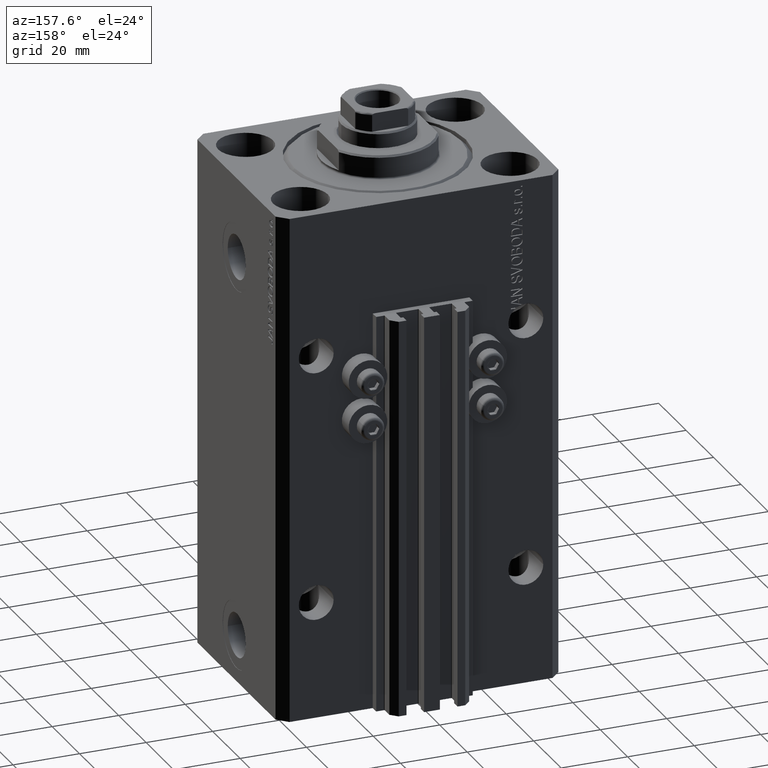
[diagram: clean part render]
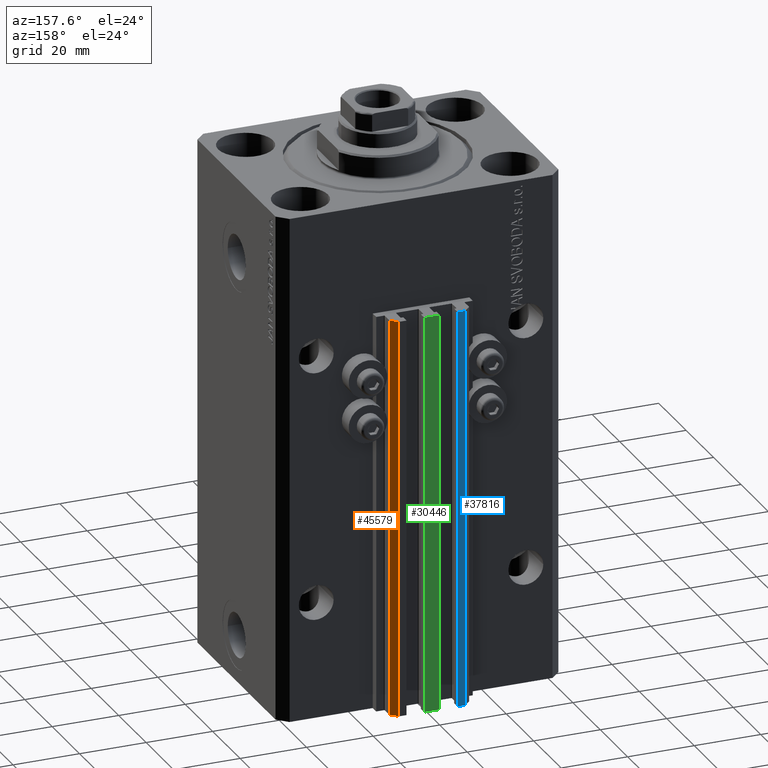
[diagram: same view with three faces highlighted in distinct colors, each labeled with its STEP entity id]
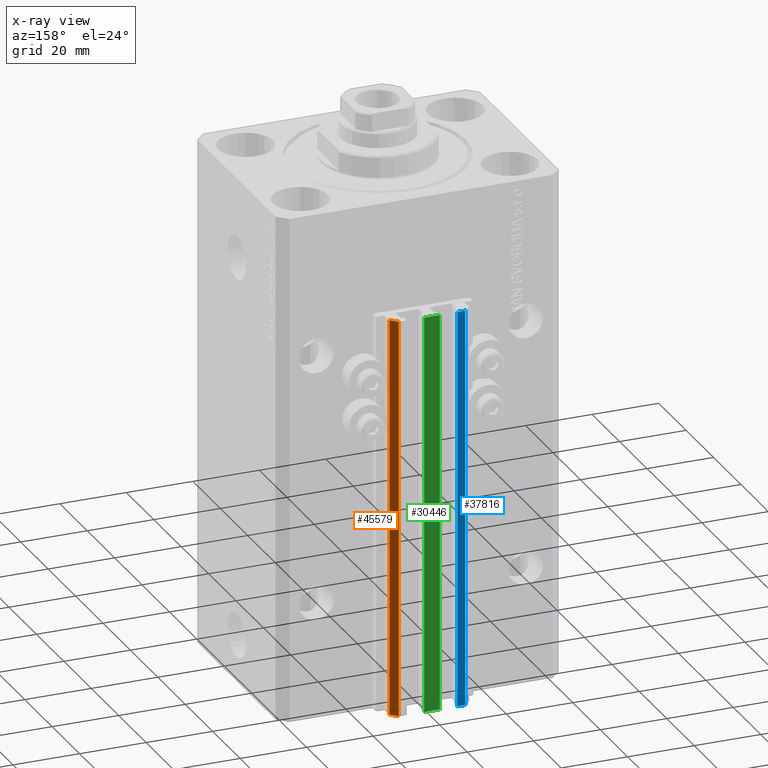
[diagram: x-ray of the same camera — body ghosted, the three highlighted faces saturated]
A machine part, auxiliary view with three faces highlighted in distinct colors.
The next image is the same camera in x-ray (body ghosted, the three faces saturated) — at least one of them is partly hidden behind the body in this view.
Their STEP definitions:

[orange] entity #45579 — the highlighted planar face has unit normal (0.7071, 0.7071, 0).
#1357 = DIRECTION ( 'NONE',  ( -0.7071067811865474617, 0.7071067811865474617, 0.000000000000000000 ) ) ;
#1528 = LINE ( 'NONE', #42193, #47199 ) ;
#2197 = ORIENTED_EDGE ( 'NONE', *, *, #19315, .T. ) ;
#3055 = CARTESIAN_POINT ( 'NONE',  ( 9.999999999999998224, 39.50000000000002132, -153.0000000000000000 ) ) ;
#3318 = DIRECTION ( 'NONE',  ( 0.7071067811865475727, 0.7071067811865475727, -0.000000000000000000 ) ) ;
#3945 = EDGE_LOOP ( 'NONE', ( #24155, #6706, #2197, #36438 ) ) ;
#5998 = CARTESIAN_POINT ( 'NONE',  ( 9.999999999999998224, 39.50000000000002132, -153.0000000000000000 ) ) ;
#6706 = ORIENTED_EDGE ( 'NONE', *, *, #32691, .F. ) ;
#8765 = DIRECTION ( 'NONE',  ( 0.000000000000000000, 0.000000000000000000, 1.000000000000000000 ) ) ;
#9993 = VERTEX_POINT ( 'NONE', #30233 ) ;
#10416 = VERTEX_POINT ( 'NONE', #5998 ) ;
#10589 = VECTOR ( 'NONE', #31179, 1000.000000000000114 ) ;
#16542 = LINE ( 'NONE', #3055, #34609 ) ;
#17596 = EDGE_CURVE ( 'NONE', #10416, #27848, #16542, .T. ) ;
#17938 = FACE_OUTER_BOUND ( 'NONE', #3945, .T. ) ;
#19315 = EDGE_CURVE ( 'NONE', #9993, #10416, #23273, .T. ) ;
#19848 = EDGE_CURVE ( 'NONE', #21971, #27848, #34827, .T. ) ;
#21695 = CARTESIAN_POINT ( 'NONE',  ( 9.999999999999998224, 39.50000000000002132, -33.00000000000000000 ) ) ;
#21971 = VERTEX_POINT ( 'NONE', #32470 ) ;
#23273 = LINE ( 'NONE', #34705, #36961 ) ;
#24155 = ORIENTED_EDGE ( 'NONE', *, *, #19848, .F. ) ;
#27848 = VERTEX_POINT ( 'NONE', #21695 ) ;
#30233 = CARTESIAN_POINT ( 'NONE',  ( 12.00000000000000000, 37.50000000000002132, -153.0000000000000000 ) ) ;
#31179 = DIRECTION ( 'NONE',  ( -0.7071067811865474617, 0.7071067811865474617, 0.000000000000000000 ) ) ;
#31221 = DIRECTION ( 'NONE',  ( 0.000000000000000000, 0.000000000000000000, 1.000000000000000000 ) ) ;
#32470 = CARTESIAN_POINT ( 'NONE',  ( 12.00000000000000000, 37.50000000000002132, -33.00000000000000000 ) ) ;
#32691 = EDGE_CURVE ( 'NONE', #9993, #21971, #1528, .T. ) ;
#34291 = AXIS2_PLACEMENT_3D ( 'NONE', #47871, #3318, #37147 ) ;
#34609 = VECTOR ( 'NONE', #8765, 1000.000000000000000 ) ;
#34705 = CARTESIAN_POINT ( 'NONE',  ( 12.00000000000000000, 37.50000000000002132, -153.0000000000000000 ) ) ;
#34827 = LINE ( 'NONE', #41904, #10589 ) ;
#36438 = ORIENTED_EDGE ( 'NONE', *, *, #17596, .T. ) ;
#36961 = VECTOR ( 'NONE', #1357, 1000.000000000000114 ) ;
#37147 = DIRECTION ( 'NONE',  ( -0.7071067811865474617, 0.7071067811865474617, 0.000000000000000000 ) ) ;
#41904 = CARTESIAN_POINT ( 'NONE',  ( 12.00000000000000000, 37.50000000000002132, -33.00000000000000000 ) ) ;
#42193 = CARTESIAN_POINT ( 'NONE',  ( 12.00000000000000000, 37.50000000000002132, -153.0000000000000000 ) ) ;
#45579 = ADVANCED_FACE ( 'NONE', ( #17938 ), #47629, .T. ) ;
#47199 = VECTOR ( 'NONE', #31221, 1000.000000000000000 ) ;
#47629 = PLANE ( 'NONE',  #34291 ) ;
#47871 = CARTESIAN_POINT ( 'NONE',  ( 12.00000000000000000, 37.50000000000002132, -153.0000000000000000 ) ) ;

[blue] entity #37816 — the highlighted planar face has unit normal (0, 1, 0).
#380 = DIRECTION ( 'NONE',  ( -1.000000000000000000, 0.000000000000000000, 0.000000000000000000 ) ) ;
#1236 = ORIENTED_EDGE ( 'NONE', *, *, #41278, .F. ) ;
#3547 = VECTOR ( 'NONE', #16605, 1000.000000000000000 ) ;
#3949 = VECTOR ( 'NONE', #40567, 1000.000000000000000 ) ;
#6058 = ORIENTED_EDGE ( 'NONE', *, *, #26006, .F. ) ;
#7229 = PLANE ( 'NONE',  #45809 ) ;
#7454 = LINE ( 'NONE', #47391, #3949 ) ;
#8889 = CARTESIAN_POINT ( 'NONE',  ( -7.650000000000002132, 39.49999999999999289, -153.0000000000000000 ) ) ;
#14712 = ORIENTED_EDGE ( 'NONE', *, *, #26563, .T. ) ;
#14767 = CARTESIAN_POINT ( 'NONE',  ( -7.650000000000002132, 39.49999999999999289, -153.0000000000000000 ) ) ;
#16605 = DIRECTION ( 'NONE',  ( 0.000000000000000000, 0.000000000000000000, 1.000000000000000000 ) ) ;
#18612 = EDGE_LOOP ( 'NONE', ( #1236, #6058, #14712, #46042 ) ) ;
#18734 = CARTESIAN_POINT ( 'NONE',  ( -10.00000000000000000, 39.49999999999999289, -33.00000000000000000 ) ) ;
#19155 = FACE_OUTER_BOUND ( 'NONE', #18612, .T. ) ;
#23781 = VECTOR ( 'NONE', #380, 1000.000000000000000 ) ;
#24001 = VERTEX_POINT ( 'NONE', #18734 ) ;
#26002 = DIRECTION ( 'NONE',  ( -1.000000000000000000, 0.000000000000000000, 0.000000000000000000 ) ) ;
#26006 = EDGE_CURVE ( 'NONE', #46258, #26754, #38747, .T. ) ;
#26563 = EDGE_CURVE ( 'NONE', #46258, #39110, #45894, .T. ) ;
#26754 = VERTEX_POINT ( 'NONE', #29292 ) ;
#29292 = CARTESIAN_POINT ( 'NONE',  ( -7.650000000000002132, 39.49999999999999289, -33.00000000000000000 ) ) ;
#33257 = DIRECTION ( 'NONE',  ( 0.000000000000000000, 1.000000000000000000, -0.000000000000000000 ) ) ;
#33282 = LINE ( 'NONE', #48142, #42063 ) ;
#37816 = ADVANCED_FACE ( 'NONE', ( #19155 ), #7229, .T. ) ;
#38747 = LINE ( 'NONE', #42180, #3547 ) ;
#39110 = VERTEX_POINT ( 'NONE', #42467 ) ;
#40567 = DIRECTION ( 'NONE',  ( 0.000000000000000000, 0.000000000000000000, 1.000000000000000000 ) ) ;
#41278 = EDGE_CURVE ( 'NONE', #26754, #24001, #33282, .T. ) ;
#42063 = VECTOR ( 'NONE', #26002, 1000.000000000000000 ) ;
#42180 = CARTESIAN_POINT ( 'NONE',  ( -7.650000000000002132, 39.49999999999999289, -153.0000000000000000 ) ) ;
#42467 = CARTESIAN_POINT ( 'NONE',  ( -10.00000000000000000, 39.49999999999999289, -153.0000000000000000 ) ) ;
#44486 = DIRECTION ( 'NONE',  ( 0.000000000000000000, 0.000000000000000000, 1.000000000000000000 ) ) ;
#45564 = EDGE_CURVE ( 'NONE', #39110, #24001, #7454, .T. ) ;
#45809 = AXIS2_PLACEMENT_3D ( 'NONE', #14767, #33257, #44486 ) ;
#45894 = LINE ( 'NONE', #8889, #23781 ) ;
#45955 = CARTESIAN_POINT ( 'NONE',  ( -7.650000000000002132, 39.49999999999999289, -153.0000000000000000 ) ) ;
#46042 = ORIENTED_EDGE ( 'NONE', *, *, #45564, .T. ) ;
#46258 = VERTEX_POINT ( 'NONE', #45955 ) ;
#47391 = CARTESIAN_POINT ( 'NONE',  ( -10.00000000000000000, 39.49999999999999289, -153.0000000000000000 ) ) ;
#48142 = CARTESIAN_POINT ( 'NONE',  ( -7.650000000000002132, 39.49999999999999289, -33.00000000000000000 ) ) ;

[green] entity #30446 — the highlighted planar face has unit normal (0, -1, 0).
#580 = CARTESIAN_POINT ( 'NONE',  ( -2.350000000000003642, 39.50000000000000711, -153.0000000000000000 ) ) ;
#853 = CARTESIAN_POINT ( 'NONE',  ( -2.350000000000003642, 39.50000000000000711, -33.00000000000000000 ) ) ;
#1071 = VERTEX_POINT ( 'NONE', #42357 ) ;
#2278 = ORIENTED_EDGE ( 'NONE', *, *, #46126, .F. ) ;
#2670 = VECTOR ( 'NONE', #18432, 1000.000000000000000 ) ;
#3985 = VECTOR ( 'NONE', #26873, 1000.000000000000000 ) ;
#4813 = CARTESIAN_POINT ( 'NONE',  ( -2.350000000000003642, 39.50000000000000711, -153.0000000000000000 ) ) ;
#5167 = CARTESIAN_POINT ( 'NONE',  ( -2.350000000000003642, 39.50000000000000711, -153.0000000000000000 ) ) ;
#8125 = EDGE_CURVE ( 'NONE', #21374, #17672, #16607, .T. ) ;
#9926 = CARTESIAN_POINT ( 'NONE',  ( -2.350000000000003642, 39.50000000000000711, -153.0000000000000000 ) ) ;
#10399 = DIRECTION ( 'NONE',  ( 0.000000000000000000, -1.000000000000000000, 0.000000000000000000 ) ) ;
#10802 = CARTESIAN_POINT ( 'NONE',  ( 2.349999999999999645, 39.50000000000000711, -33.00000000000000000 ) ) ;
#13688 = CARTESIAN_POINT ( 'NONE',  ( -2.350000000000003642, 39.50000000000000711, -33.00000000000000000 ) ) ;
#15671 = EDGE_CURVE ( 'NONE', #1071, #22626, #21596, .T. ) ;
#15911 = LINE ( 'NONE', #580, #3985 ) ;
#16106 = ORIENTED_EDGE ( 'NONE', *, *, #46954, .T. ) ;
#16558 = VECTOR ( 'NONE', #38988, 1000.000000000000000 ) ;
#16607 = LINE ( 'NONE', #5167, #16558 ) ;
#17672 = VERTEX_POINT ( 'NONE', #853 ) ;
#18432 = DIRECTION ( 'NONE',  ( 0.000000000000000000, 0.000000000000000000, 1.000000000000000000 ) ) ;
#21374 = VERTEX_POINT ( 'NONE', #4813 ) ;
#21596 = LINE ( 'NONE', #47889, #2670 ) ;
#22626 = VERTEX_POINT ( 'NONE', #10802 ) ;
#22685 = VECTOR ( 'NONE', #43634, 1000.000000000000000 ) ;
#25255 = FACE_OUTER_BOUND ( 'NONE', #41183, .T. ) ;
#26873 = DIRECTION ( 'NONE',  ( 1.000000000000000000, 0.000000000000000000, 0.000000000000000000 ) ) ;
#28768 = LINE ( 'NONE', #13688, #22685 ) ;
#30446 = ADVANCED_FACE ( 'NONE', ( #25255 ), #39860, .F. ) ;
#32259 = ORIENTED_EDGE ( 'NONE', *, *, #8125, .T. ) ;
#32361 = AXIS2_PLACEMENT_3D ( 'NONE', #9926, #10399, #39621 ) ;
#38988 = DIRECTION ( 'NONE',  ( 0.000000000000000000, 0.000000000000000000, 1.000000000000000000 ) ) ;
#39621 = DIRECTION ( 'NONE',  ( 0.000000000000000000, -0.000000000000000000, -1.000000000000000000 ) ) ;
#39860 = PLANE ( 'NONE',  #32361 ) ;
#41183 = EDGE_LOOP ( 'NONE', ( #16106, #43674, #2278, #32259 ) ) ;
#42357 = CARTESIAN_POINT ( 'NONE',  ( 2.349999999999999645, 39.50000000000000711, -153.0000000000000000 ) ) ;
#43634 = DIRECTION ( 'NONE',  ( 1.000000000000000000, 0.000000000000000000, 0.000000000000000000 ) ) ;
#43674 = ORIENTED_EDGE ( 'NONE', *, *, #15671, .F. ) ;
#46126 = EDGE_CURVE ( 'NONE', #21374, #1071, #15911, .T. ) ;
#46954 = EDGE_CURVE ( 'NONE', #17672, #22626, #28768, .T. ) ;
#47889 = CARTESIAN_POINT ( 'NONE',  ( 2.349999999999999645, 39.50000000000000711, -153.0000000000000000 ) ) ;